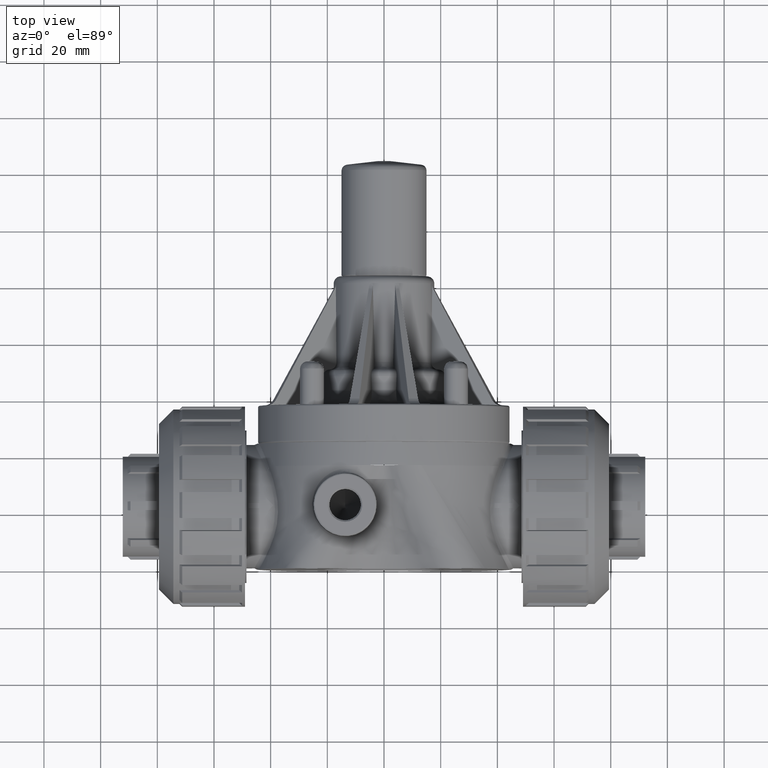
[diagram: clean part render]
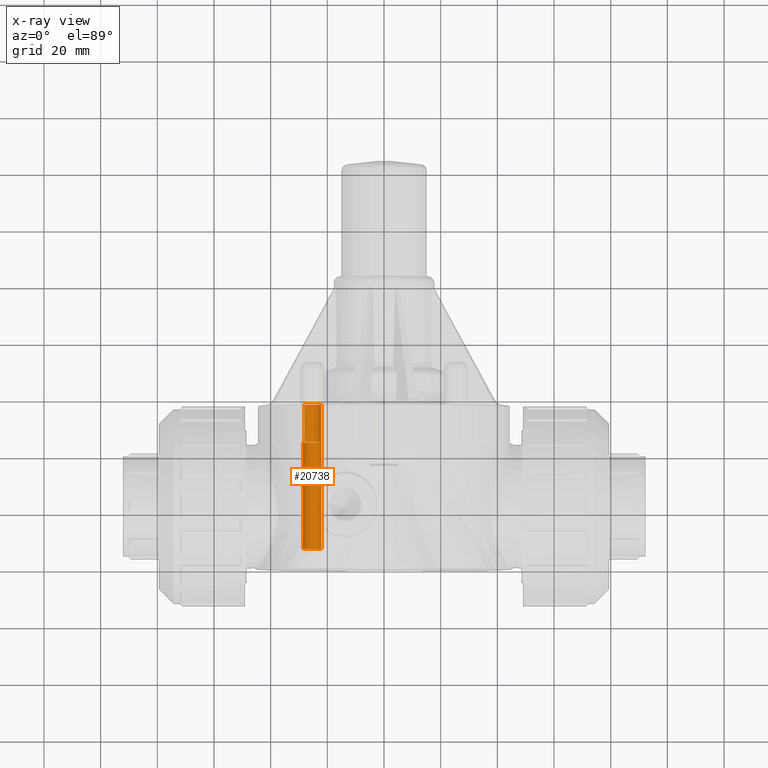
[diagram: x-ray — body ghosted, one internal face saturated and labeled with its STEP entity id]
A machine part, top view, then the same camera in x-ray: the body is ghosted and one INTERNAL B-rep face — a face not visible from any outside direction — is saturated and labeled: STEP entity #20738.
In plain terms, the highlighted cylindrical surface (bore or boss wall) has radius 3.2512 mm, axis along (-0, -1, -0).
Its self-contained STEP definition (entity closure, byte-faithful):
#20675=CARTESIAN_POINT('',(-1.107740631747580,2.275000000000001,0.930627719567320));
#20676=VERTEX_POINT('',#20675);
#20677=CARTESIAN_POINT('',(-0.892447930219310,2.275000000000001,1.069137555927856));
#20678=VERTEX_POINT('',#20677);
#20679=CARTESIAN_POINT('',(-1.000169786684573,2.275000000000001,1.0));
#20680=DIRECTION('',(0.0,-1.0,0.0));
#20681=DIRECTION('',(1.0,0.0,0.0));
#20682=AXIS2_PLACEMENT_3D('',#20679,#20680,#20681);
#20683=CIRCLE('',#20682,0.128000000000000);
#20684=EDGE_CURVE('',#20676,#20678,#20683,.T.);
#20696=CARTESIAN_POINT('',(-1.000169786684573,1.372500000000000,1.0));
#20697=DIRECTION('',(-2.392924E-016,-1.0,-1.355855E-031));
#20698=DIRECTION('',(1.0,0.0,0.0));
#20699=AXIS2_PLACEMENT_3D('',#20696,#20697,#20698);
#20700=CYLINDRICAL_SURFACE('',#20699,0.128000000000000);
#20701=ORIENTED_EDGE('',*,*,#20684,.T.);
#20702=CARTESIAN_POINT('',(-0.892447930219310,1.750000000000001,1.069137555927856));
#20703=VERTEX_POINT('',#20702);
#20704=CARTESIAN_POINT('',(-0.892447930219347,1.750000000000001,1.069137555927913));
#20705=DIRECTION('',(0.0,1.0,0.0));
#20706=VECTOR('',#20705,0.525000000000000);
#20707=LINE('',#20704,#20706);
#20708=EDGE_CURVE('',#20703,#20678,#20707,.T.);
#20709=ORIENTED_EDGE('',*,*,#20708,.F.);
#20710=CARTESIAN_POINT('',(-1.107740631747580,1.750000000000001,0.930627719567320));
#20711=VERTEX_POINT('',#20710);
#20712=CARTESIAN_POINT('',(-1.000169786684573,1.750000000000001,1.0));
#20713=DIRECTION('',(0.0,1.0,0.0));
#20714=DIRECTION('',(1.0,0.0,0.0));
#20715=AXIS2_PLACEMENT_3D('',#20712,#20713,#20714);
#20716=CIRCLE('',#20715,0.128000000000000);
#20717=EDGE_CURVE('',#20711,#20703,#20716,.T.);
#20718=ORIENTED_EDGE('',*,*,#20717,.F.);
#20719=CARTESIAN_POINT('',(-1.107740631747544,2.275000000000001,0.930627719567263));
#20720=DIRECTION('',(0.0,-1.0,0.0));
#20721=VECTOR('',#20720,0.525000000000000);
#20722=LINE('',#20719,#20721);
#20723=EDGE_CURVE('',#20676,#20711,#20722,.T.);
#20724=ORIENTED_EDGE('',*,*,#20723,.F.);
#20725=EDGE_LOOP('',(#20701,#20709,#20718,#20724));
#20726=FACE_OUTER_BOUND('',#20725,.T.);
#20727=CARTESIAN_POINT('',(-0.872169786684573,0.270000000000000,1.0));
#20728=VERTEX_POINT('',#20727);
#20729=CARTESIAN_POINT('',(-1.000169786684573,0.270000000000000,1.0));
#20730=DIRECTION('',(0.0,-1.0,0.0));
#20731=DIRECTION('',(1.0,0.0,0.0));
#20732=AXIS2_PLACEMENT_3D('',#20729,#20730,#20731);
#20733=CIRCLE('',#20732,0.128000000000000);
#20734=EDGE_CURVE('',#20728,#20728,#20733,.T.);
#20735=ORIENTED_EDGE('',*,*,#20734,.F.);
#20736=EDGE_LOOP('',(#20735));
#20737=FACE_BOUND('',#20736,.T.);
#20738=ADVANCED_FACE('',(#20726,#20737),#20700,.T.);